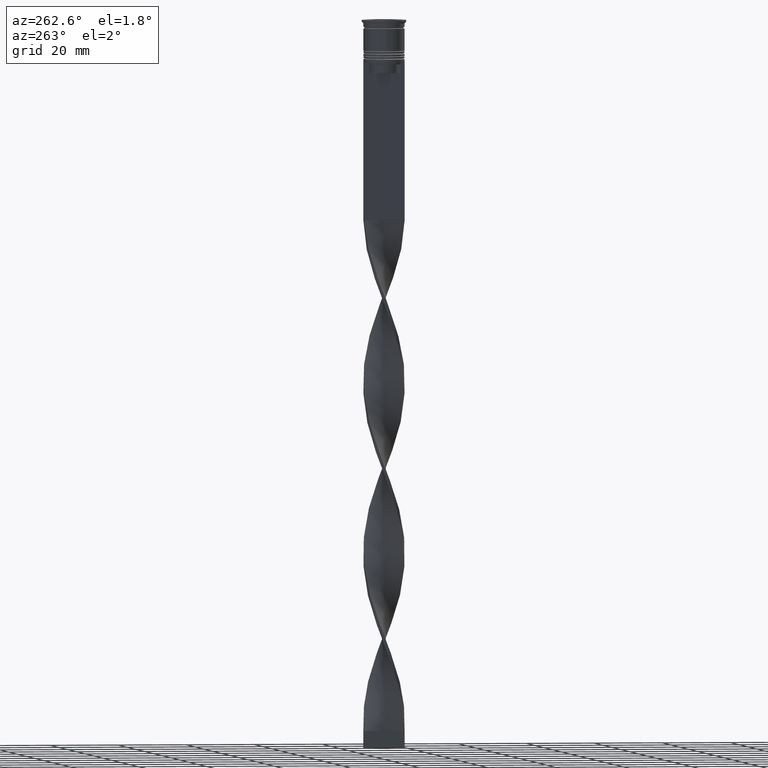
[diagram: clean part render]
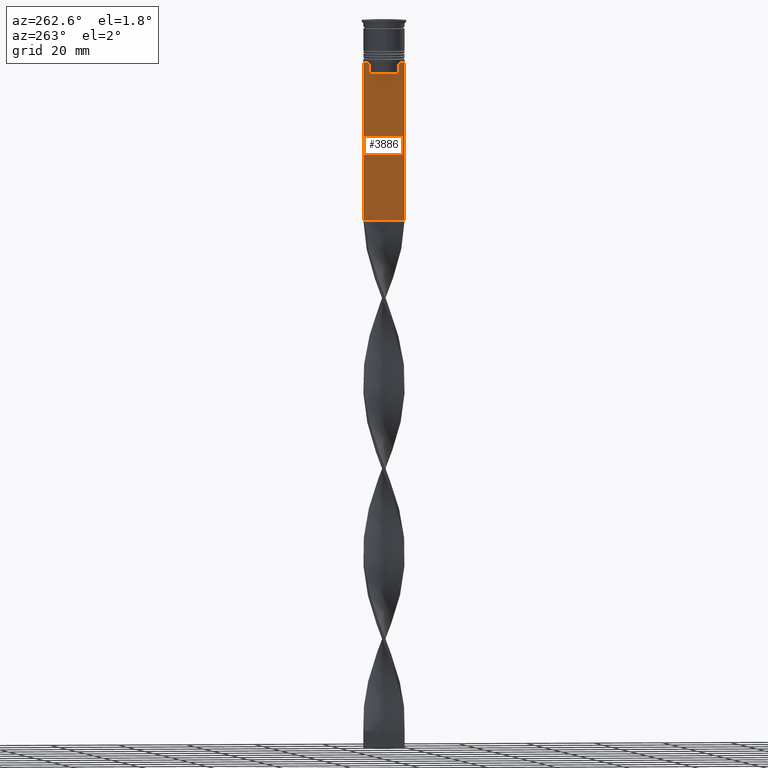
[diagram: same view with one face highlighted and labeled with its STEP entity id]
A machine part, auxiliary view. The second image highlights one B-rep face of the part: STEP entity #3886.
In plain terms, the highlighted planar face has unit normal (-1, 0, 0).
Its self-contained STEP definition (entity closure, byte-faithful):
#26 = CARTESIAN_POINT ( 'NONE',  ( -0.4999999999999997780, 4.539195634199897356, -12.83338923751318816 ) ) ;
#38 = DIRECTION ( 'NONE',  ( 0.000000000000000000, 0.000000000000000000, -1.000000000000000000 ) ) ;
#49 = EDGE_CURVE ( 'NONE', #3310, #1521, #3764, .T. ) ;
#62 = CARTESIAN_POINT ( 'NONE',  ( -0.4999999999999997780, 4.706831415367290106, -12.66671683478478982 ) ) ;
#146 = CARTESIAN_POINT ( 'NONE',  ( -0.4999999999999997780, 4.399999999999999467, -15.50000000000000000 ) ) ;
#180 = EDGE_CURVE ( 'NONE', #1521, #411, #2308, .T. ) ;
#309 = CARTESIAN_POINT ( 'NONE',  ( -0.4999999999999997780, 4.874423042781576676, -12.50000000000000000 ) ) ;
#332 = ORIENTED_EDGE ( 'NONE', *, *, #487, .F. ) ;
#371 = VECTOR ( 'NONE', #3705, 1000.000000000000000 ) ;
#410 = VERTEX_POINT ( 'NONE', #1217 ) ;
#411 = VERTEX_POINT ( 'NONE', #3620 ) ;
#415 = CARTESIAN_POINT ( 'NONE',  ( -0.4999999999999997780, 4.371498598878878816, -13.00000000000000178 ) ) ;
#426 = LINE ( 'NONE', #2829, #2584 ) ;
#428 = EDGE_CURVE ( 'NONE', #865, #2620, #1031, .T. ) ;
#437 = CARTESIAN_POINT ( 'NONE',  ( -0.4999999999999997780, -4.371498598878878816, -15.50000000000000000 ) ) ;
#455 = CARTESIAN_POINT ( 'NONE',  ( -0.4999999999999997780, -6.000000000000000000, -12.50000000000000000 ) ) ;
#487 = EDGE_CURVE ( 'NONE', #2446, #3310, #3094, .T. ) ;
#587 = LINE ( 'NONE', #2095, #3165 ) ;
#621 = VERTEX_POINT ( 'NONE', #1652 ) ;
#646 = CARTESIAN_POINT ( 'NONE',  ( -0.4999999999999997780, -4.706831372970964544, -12.66671687695981596 ) ) ;
#683 = VECTOR ( 'NONE', #38, 1000.000000000000000 ) ;
#713 = EDGE_CURVE ( 'NONE', #410, #865, #750, .T. ) ;
#715 = B_SPLINE_CURVE_WITH_KNOTS ( 'NONE', 3,
 ( #989, #2478, #646, #2838 ),
 .UNSPECIFIED., .F., .F.,
 ( 4, 4 ),
 ( 0.02089901220910806920, 0.02161421017310284978 ),
 .UNSPECIFIED. ) ;
#739 = LINE ( 'NONE', #455, #3657 ) ;
#750 = LINE ( 'NONE', #2227, #3590 ) ;
#802 = DIRECTION ( 'NONE',  ( -1.000000000000000000, 0.000000000000000000, 0.000000000000000000 ) ) ;
#865 = VERTEX_POINT ( 'NONE', #1948 ) ;
#942 = ORIENTED_EDGE ( 'NONE', *, *, #3387, .F. ) ;
#989 = CARTESIAN_POINT ( 'NONE',  ( -0.4999999999999997780, -4.371498598878878816, -13.00000000000000178 ) ) ;
#1031 = LINE ( 'NONE', #2236, #2395 ) ;
#1080 = CARTESIAN_POINT ( 'NONE',  ( -0.4999999999999997780, -4.874423042781576676, -12.50000000000000000 ) ) ;
#1088 = CARTESIAN_POINT ( 'NONE',  ( -0.4999999999999997780, 4.874423042781576676, -12.50000000000000000 ) ) ;
#1184 = EDGE_LOOP ( 'NONE', ( #1776, #2986, #942, #2583, #3069, #1574, #2950, #1824, #2492, #3546, #1245, #332 ) ) ;
#1217 = CARTESIAN_POINT ( 'NONE',  ( -0.4999999999999997780, -5.878775382679627626, -12.50000000000000000 ) ) ;
#1218 = CARTESIAN_POINT ( 'NONE',  ( -0.4999999999999997780, 4.371498598878878816, -13.00000000000000178 ) ) ;
#1245 = ORIENTED_EDGE ( 'NONE', *, *, #49, .F. ) ;
#1263 = VECTOR ( 'NONE', #3513, 1000.000000000000000 ) ;
#1521 = VERTEX_POINT ( 'NONE', #437 ) ;
#1555 = VERTEX_POINT ( 'NONE', #1088 ) ;
#1560 = VECTOR ( 'NONE', #3192, 1000.000000000000000 ) ;
#1574 = ORIENTED_EDGE ( 'NONE', *, *, #428, .F. ) ;
#1644 = DIRECTION ( 'NONE',  ( 0.000000000000000000, -1.000000000000000000, 0.000000000000000000 ) ) ;
#1652 = CARTESIAN_POINT ( 'NONE',  ( -0.4999999999999997780, 5.878775382679627626, -12.50000000000000000 ) ) ;
#1680 = VECTOR ( 'NONE', #2653, 1000.000000000000000 ) ;
#1769 = EDGE_CURVE ( 'NONE', #1555, #2446, #2139, .T. ) ;
#1776 = ORIENTED_EDGE ( 'NONE', *, *, #1769, .F. ) ;
#1824 = ORIENTED_EDGE ( 'NONE', *, *, #2775, .F. ) ;
#1889 = EDGE_CURVE ( 'NONE', #2254, #3681, #426, .T. ) ;
#1940 = EDGE_CURVE ( 'NONE', #2620, #3681, #3453, .T. ) ;
#1948 = CARTESIAN_POINT ( 'NONE',  ( -0.4999999999999997780, -6.000000000000000000, -12.50000000000000000 ) ) ;
#2095 = CARTESIAN_POINT ( 'NONE',  ( -0.4999999999999997780, -6.000000000000000000, -12.50000000000000000 ) ) ;
#2130 = FACE_OUTER_BOUND ( 'NONE', #1184, .T. ) ;
#2139 = B_SPLINE_CURVE_WITH_KNOTS ( 'NONE', 3,
 ( #309, #62, #26, #1218 ),
 .UNSPECIFIED., .F., .F.,
 ( 4, 4 ),
 ( 0.008336552452178418518, 0.009045730124312837891 ),
 .UNSPECIFIED. ) ;
#2191 = CARTESIAN_POINT ( 'NONE',  ( -0.4999999999999997780, -6.000000000000000000, -58.50000000000000000 ) ) ;
#2227 = CARTESIAN_POINT ( 'NONE',  ( -0.4999999999999997780, -6.000000000000000000, -12.50000000000000000 ) ) ;
#2236 = CARTESIAN_POINT ( 'NONE',  ( -0.4999999999999997780, -6.000000000000000000, -0.4584054212077061097 ) ) ;
#2254 = VERTEX_POINT ( 'NONE', #3573 ) ;
#2308 = LINE ( 'NONE', #2351, #1680 ) ;
#2351 = CARTESIAN_POINT ( 'NONE',  ( -0.4999999999999997780, -4.371498598878878816, 0.000000000000000000 ) ) ;
#2395 = VECTOR ( 'NONE', #2793, 1000.000000000000000 ) ;
#2446 = VERTEX_POINT ( 'NONE', #415 ) ;
#2478 = CARTESIAN_POINT ( 'NONE',  ( -0.4999999999999997780, -4.539195586926424220, -12.83338928448044136 ) ) ;
#2492 = ORIENTED_EDGE ( 'NONE', *, *, #2523, .F. ) ;
#2523 = EDGE_CURVE ( 'NONE', #411, #3596, #715, .T. ) ;
#2564 = LINE ( 'NONE', #2931, #1263 ) ;
#2583 = ORIENTED_EDGE ( 'NONE', *, *, #1889, .T. ) ;
#2584 = VECTOR ( 'NONE', #2848, 1000.000000000000000 ) ;
#2614 = CARTESIAN_POINT ( 'NONE',  ( -0.4999999999999997780, 4.371498598878878816, -15.50000000000000000 ) ) ;
#2620 = VERTEX_POINT ( 'NONE', #3423 ) ;
#2653 = DIRECTION ( 'NONE',  ( -0.000000000000000000, -0.000000000000000000, 1.000000000000000000 ) ) ;
#2681 = CARTESIAN_POINT ( 'NONE',  ( -0.4999999999999997780, 6.000000000000000888, -58.50000000000000000 ) ) ;
#2775 = EDGE_CURVE ( 'NONE', #3596, #410, #739, .T. ) ;
#2793 = DIRECTION ( 'NONE',  ( 0.000000000000000000, 0.000000000000000000, -1.000000000000000000 ) ) ;
#2829 = CARTESIAN_POINT ( 'NONE',  ( -0.4999999999999997780, 6.000000000000000888, -0.4584054212077061097 ) ) ;
#2838 = CARTESIAN_POINT ( 'NONE',  ( -0.4999999999999997780, -4.874423042781576676, -12.50000000000000000 ) ) ;
#2848 = DIRECTION ( 'NONE',  ( 0.000000000000000000, 0.000000000000000000, -1.000000000000000000 ) ) ;
#2931 = CARTESIAN_POINT ( 'NONE',  ( -0.4999999999999997780, -6.000000000000000000, -12.50000000000000000 ) ) ;
#2950 = ORIENTED_EDGE ( 'NONE', *, *, #713, .F. ) ;
#2970 = DIRECTION ( 'NONE',  ( 0.000000000000000000, 0.000000000000000000, 1.000000000000000000 ) ) ;
#2986 = ORIENTED_EDGE ( 'NONE', *, *, #3176, .F. ) ;
#3069 = ORIENTED_EDGE ( 'NONE', *, *, #1940, .F. ) ;
#3094 = LINE ( 'NONE', #3404, #683 ) ;
#3103 = AXIS2_PLACEMENT_3D ( 'NONE', #3810, #802, #2970 ) ;
#3165 = VECTOR ( 'NONE', #3572, 1000.000000000000000 ) ;
#3176 = EDGE_CURVE ( 'NONE', #621, #1555, #2564, .T. ) ;
#3192 = DIRECTION ( 'NONE',  ( 0.000000000000000000, -1.000000000000000000, 0.000000000000000000 ) ) ;
#3251 = PLANE ( 'NONE',  #3103 ) ;
#3310 = VERTEX_POINT ( 'NONE', #2614 ) ;
#3387 = EDGE_CURVE ( 'NONE', #2254, #621, #587, .T. ) ;
#3404 = CARTESIAN_POINT ( 'NONE',  ( -0.4999999999999997780, 4.371498598878878816, 0.000000000000000000 ) ) ;
#3423 = CARTESIAN_POINT ( 'NONE',  ( -0.4999999999999997780, -6.000000000000000000, -58.50000000000000000 ) ) ;
#3429 = DIRECTION ( 'NONE',  ( 0.000000000000000000, -1.000000000000000000, 0.000000000000000000 ) ) ;
#3453 = LINE ( 'NONE', #2191, #371 ) ;
#3513 = DIRECTION ( 'NONE',  ( 0.000000000000000000, -1.000000000000000000, 0.000000000000000000 ) ) ;
#3546 = ORIENTED_EDGE ( 'NONE', *, *, #180, .F. ) ;
#3572 = DIRECTION ( 'NONE',  ( 0.000000000000000000, -1.000000000000000000, 0.000000000000000000 ) ) ;
#3573 = CARTESIAN_POINT ( 'NONE',  ( -0.4999999999999997780, 6.000000000000001776, -12.50000000000000000 ) ) ;
#3590 = VECTOR ( 'NONE', #3429, 1000.000000000000000 ) ;
#3596 = VERTEX_POINT ( 'NONE', #1080 ) ;
#3620 = CARTESIAN_POINT ( 'NONE',  ( -0.4999999999999997780, -4.371498598878878816, -13.00000000000000178 ) ) ;
#3657 = VECTOR ( 'NONE', #1644, 1000.000000000000000 ) ;
#3681 = VERTEX_POINT ( 'NONE', #2681 ) ;
#3705 = DIRECTION ( 'NONE',  ( 0.000000000000000000, 1.000000000000000000, 0.000000000000000000 ) ) ;
#3764 = LINE ( 'NONE', #146, #1560 ) ;
#3810 = CARTESIAN_POINT ( 'NONE',  ( -0.4999999999999997780, -6.000000000000000000, -0.4584054212077061097 ) ) ;
#3886 = ADVANCED_FACE ( 'NONE', ( #2130 ), #3251, .T. ) ;